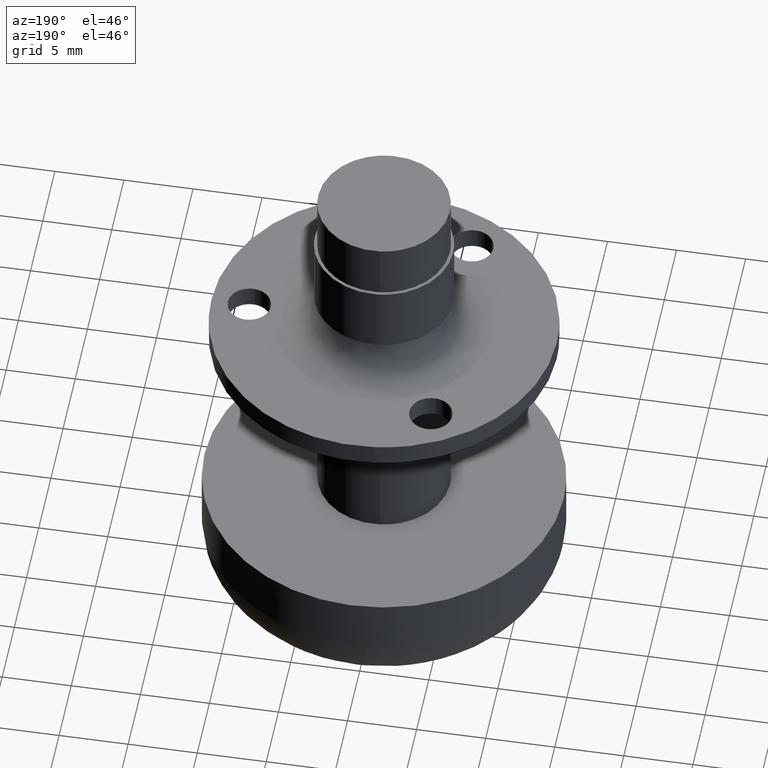
[diagram: clean part render]
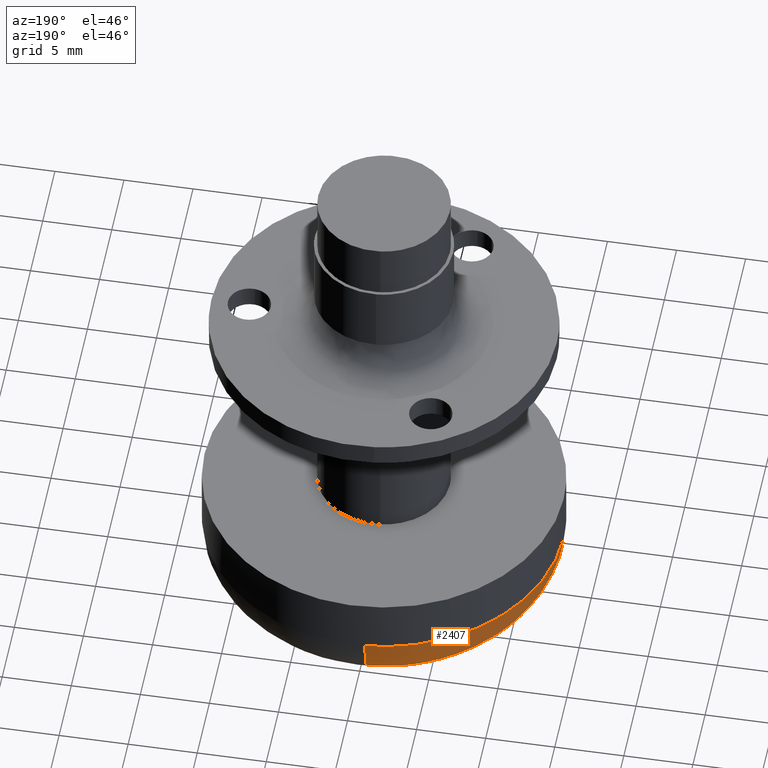
[diagram: same view with one face highlighted and labeled with its STEP entity id]
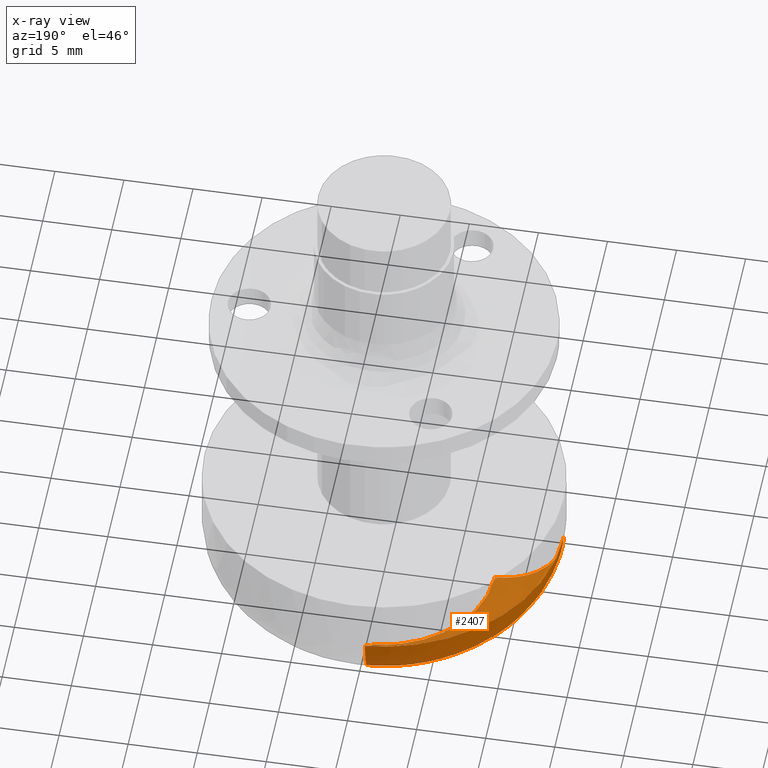
[diagram: x-ray of the same camera — body ghosted, the highlighted face saturated]
A machine part, auxiliary view. The second image highlights one B-rep face of the part: STEP entity #2407.
The next image is the same camera in x-ray: the body ghosted, the highlighted face saturated — about 42% of this face is hidden behind the body in this view.
In plain terms, the highlighted face is a freeform B-spline surface patch.
Its self-contained STEP definition (entity closure, byte-faithful):
#1874=CARTESIAN_POINT('',(-12.998973574649600,-0.163358518484509,-32.000000000050612));
#1875=VERTEX_POINT('',#1874);
#1965=CARTESIAN_POINT('',(-0.906532270490859,12.968353759924909,-32.000000000050363));
#1966=VERTEX_POINT('',#1965);
#1982=CARTESIAN_POINT('',(-13.0,0.0,-32.0));
#1983=VERTEX_POINT('',#1982);
#1984=CARTESIAN_POINT('',(-13.0,0.0,-32.0));
#1985=CARTESIAN_POINT('',(-13.000000000000002,12.122979014447102,-32.000000000000007));
#1986=CARTESIAN_POINT('',(-0.906532270490859,12.968353759924911,-32.000000000050363));
#1994=(BOUNDED_CURVE()B_SPLINE_CURVE(2,(#1984,#1985,#1986),.UNSPECIFIED.,.F.,.U.)B_SPLINE_CURVE_WITH_KNOTS((3,3),(0.0,0.237833686534866),.UNSPECIFIED.)CURVE()GEOMETRIC_REPRESENTATION_ITEM()RATIONAL_B_SPLINE_CURVE((1.0,0.721360504034133,0.972879876386499))REPRESENTATION_ITEM(''));
#1995=EDGE_CURVE('',#1983,#1966,#1994,.T.);
#1997=CARTESIAN_POINT('',(-12.998973574649591,-0.163358518484509,-32.000000000050605));
#1998=CARTESIAN_POINT('',(-13.000000000000005,-0.081682483895492,-32.0));
#1999=CARTESIAN_POINT('',(-13.0,0.0,-32.0));
#2007=(BOUNDED_CURVE()B_SPLINE_CURVE(2,(#1997,#1998,#1999),.UNSPECIFIED.,.F.,.U.)B_SPLINE_CURVE_WITH_KNOTS((3,3),(0.997784295921703,1.0),.UNSPECIFIED.)CURVE()GEOMETRIC_REPRESENTATION_ITEM()RATIONAL_B_SPLINE_CURVE((0.994854295643955,0.997404141202278,1.0))REPRESENTATION_ITEM(''));
#2008=EDGE_CURVE('',#1875,#1983,#2007,.T.);
#2291=CARTESIAN_POINT('',(-7.999368354055104,-0.100528319209804,-37.0));
#2292=VERTEX_POINT('',#2291);
#2293=CARTESIAN_POINT('',(-12.998973574649595,-0.163358518484509,-32.000000000050598));
#2294=CARTESIAN_POINT('',(-12.998973574548398,-0.163358518482313,-36.999999999147327));
#2295=CARTESIAN_POINT('',(-7.999368354055104,-0.100528319209804,-37.000000000000007));
#2303=(BOUNDED_CURVE()B_SPLINE_CURVE(2,(#2293,#2294,#2295),.UNSPECIFIED.,.F.,.U.)B_SPLINE_CURVE_WITH_KNOTS((3,3),(-1.725134643261056,-0.274865356893069),.UNSPECIFIED.)CURVE()GEOMETRIC_REPRESENTATION_ITEM()RATIONAL_B_SPLINE_CURVE((0.883342149645653,0.624617224162483,0.883342149590662))REPRESENTATION_ITEM(''));
#2304=EDGE_CURVE('',#1875,#2292,#2303,.T.);
#2323=CARTESIAN_POINT('',(-0.557866012625054,7.980525390819206,-37.0));
#2324=VERTEX_POINT('',#2323);
#2340=CARTESIAN_POINT('',(-0.906532270490859,12.968353759924918,-32.000000000050370));
#2341=CARTESIAN_POINT('',(-0.906532270473723,12.968353759825133,-36.999999999805986));
#2342=CARTESIAN_POINT('',(-0.557866012625054,7.980525390819206,-36.999999999999993));
#2350=(BOUNDED_CURVE()B_SPLINE_CURVE(2,(#2340,#2341,#2342),.UNSPECIFIED.,.F.,.U.)B_SPLINE_CURVE_WITH_KNOTS((3,3),(-1.725134643261155,-0.274865356757980),.UNSPECIFIED.)CURVE()GEOMETRIC_REPRESENTATION_ITEM()RATIONAL_B_SPLINE_CURVE((0.863472075365497,0.610566959871802,0.863472075358824))REPRESENTATION_ITEM(''));
#2351=EDGE_CURVE('',#1966,#2324,#2350,.T.);
#2356=CARTESIAN_POINT('',(-12.986871356747864,-0.163206429522449,-31.652314440384355));
#2357=CARTESIAN_POINT('',(-13.140995909881314,12.100990209771256,-31.652314440384348));
#2358=CARTESIAN_POINT('',(-0.905688276836995,12.956280049480089,-31.652314440384359));
#2359=CARTESIAN_POINT('',(-13.386628723007865,-0.168230193185796,-37.387686214116556));
#2360=CARTESIAN_POINT('',(-13.545497484638044,12.473478690061217,-37.387686214116542));
#2361=CARTESIAN_POINT('',(-0.933566859003191,13.355095764738246,-37.387686214116528));
#2362=CARTESIAN_POINT('',(-7.651709823934222,-0.096159283156161,-36.987896797073354));
#2363=CARTESIAN_POINT('',(-7.742518173761133,7.129759210198685,-36.987896797073347));
#2364=CARTESIAN_POINT('',(-0.533620738584963,7.633685790283790,-36.987896797073347));
#2372=(BOUNDED_SURFACE()B_SPLINE_SURFACE(2,2,((#2356,#2359,#2362),(#2357,#2360,#2363),(#2358,#2361,#2364)),.UNSPECIFIED.,.F.,.F.,.U.)B_SPLINE_SURFACE_WITH_KNOTS((3,3),(3,3),(0.0,20.652620479805581),(0.0,9.111870102801635),.UNSPECIFIED.)GEOMETRIC_REPRESENTATION_ITEM()RATIONAL_B_SPLINE_SURFACE(((0.910479796259388,0.597479559977835,0.910479831346223),(0.654473372396001,0.429481756940568,0.654473397617207),(0.889999282350317,0.584039735734854,0.889999316647901)))REPRESENTATION_ITEM('')SURFACE());
#2373=ORIENTED_EDGE('',*,*,#1995,.T.);
#2374=ORIENTED_EDGE('',*,*,#2351,.T.);
#2375=CARTESIAN_POINT('',(-8.0,0.0,-37.0));
#2376=VERTEX_POINT('',#2375);
#2377=CARTESIAN_POINT('',(-8.0,0.0,-37.0));
#2378=CARTESIAN_POINT('',(-8.0,7.460294778105310,-37.000000000000007));
#2379=CARTESIAN_POINT('',(-0.557866012625054,7.980525390819206,-37.0));
#2387=(BOUNDED_CURVE()B_SPLINE_CURVE(2,(#2377,#2378,#2379),.UNSPECIFIED.,.F.,.U.)B_SPLINE_CURVE_WITH_KNOTS((3,3),(0.0,0.237833686534499),.UNSPECIFIED.)CURVE()GEOMETRIC_REPRESENTATION_ITEM()RATIONAL_B_SPLINE_CURVE((1.0,0.721360504034564,0.972879876385722))REPRESENTATION_ITEM(''));
#2388=EDGE_CURVE('',#2376,#2324,#2387,.T.);
#2389=ORIENTED_EDGE('',*,*,#2388,.F.);
#2390=CARTESIAN_POINT('',(-7.999368354055104,-0.100528319209804,-37.0));
#2391=CARTESIAN_POINT('',(-8.000000000000002,-0.050266144072760,-37.0));
#2392=CARTESIAN_POINT('',(-8.0,0.0,-37.0));
#2400=(BOUNDED_CURVE()B_SPLINE_CURVE(2,(#2390,#2391,#2392),.UNSPECIFIED.,.F.,.U.)B_SPLINE_CURVE_WITH_KNOTS((3,3),(0.997784295915677,1.0),.UNSPECIFIED.)CURVE()GEOMETRIC_REPRESENTATION_ITEM()RATIONAL_B_SPLINE_CURVE((0.994854295630084,0.997404141195218,1.0))REPRESENTATION_ITEM(''));
#2401=EDGE_CURVE('',#2292,#2376,#2400,.T.);
#2402=ORIENTED_EDGE('',*,*,#2401,.F.);
#2403=ORIENTED_EDGE('',*,*,#2304,.F.);
#2404=ORIENTED_EDGE('',*,*,#2008,.T.);
#2405=EDGE_LOOP('',(#2373,#2374,#2389,#2402,#2403,#2404));
#2406=FACE_OUTER_BOUND('',#2405,.T.);
#2407=ADVANCED_FACE('',(#2406),#2372,.T.);